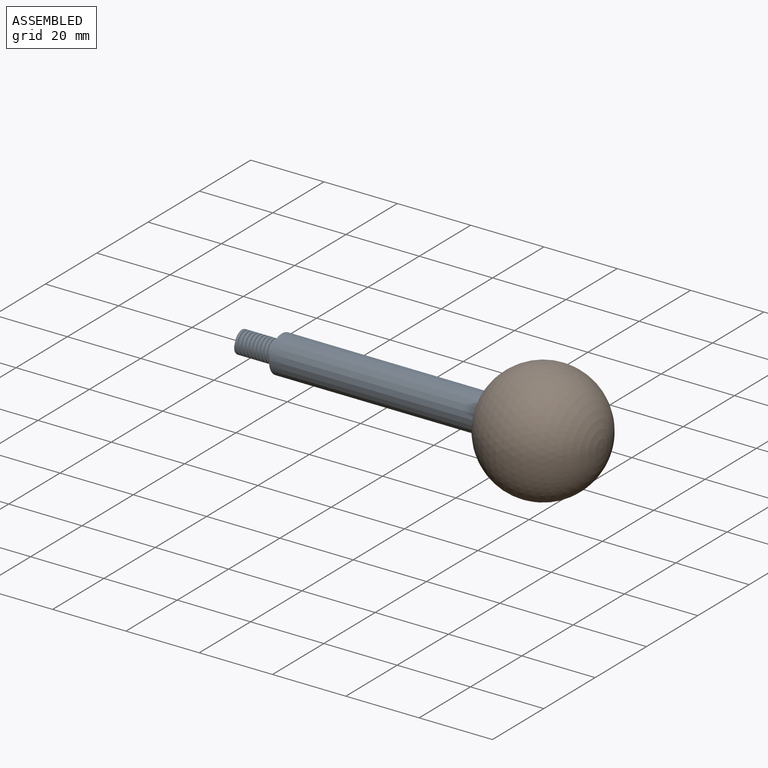
[diagram: assembled view]
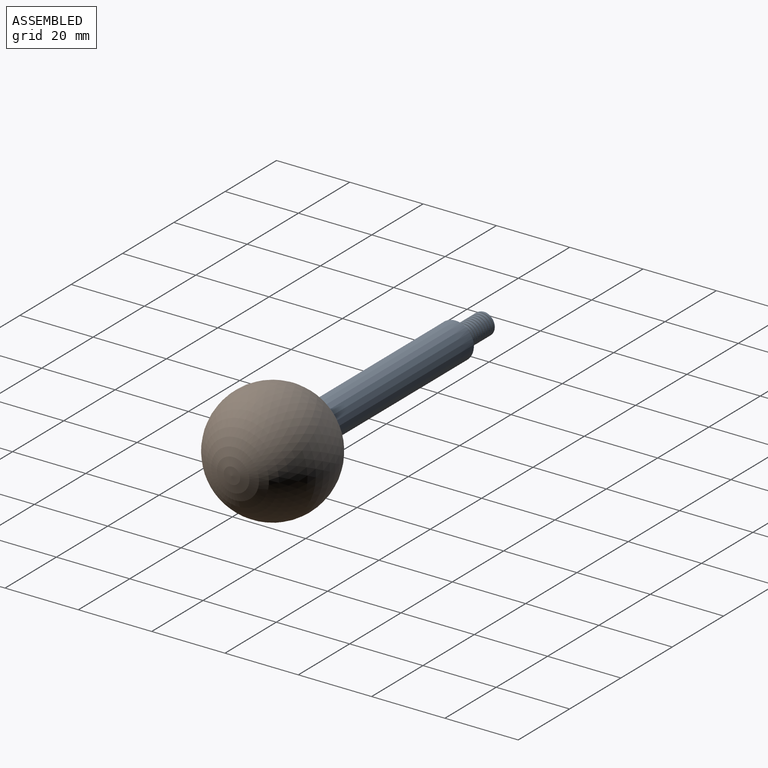
[diagram: assembled view, second angle]
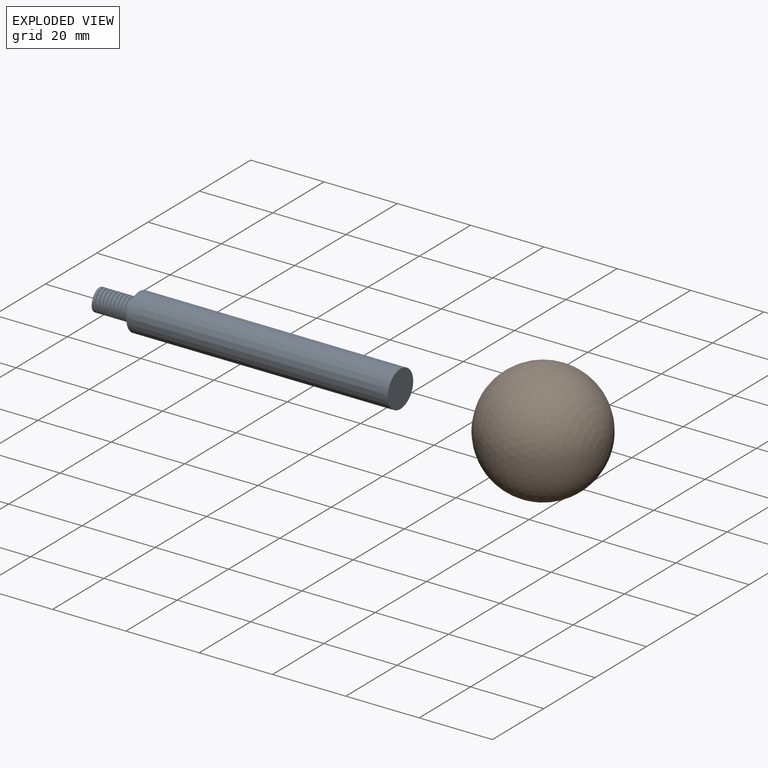
[diagram: exploded view]
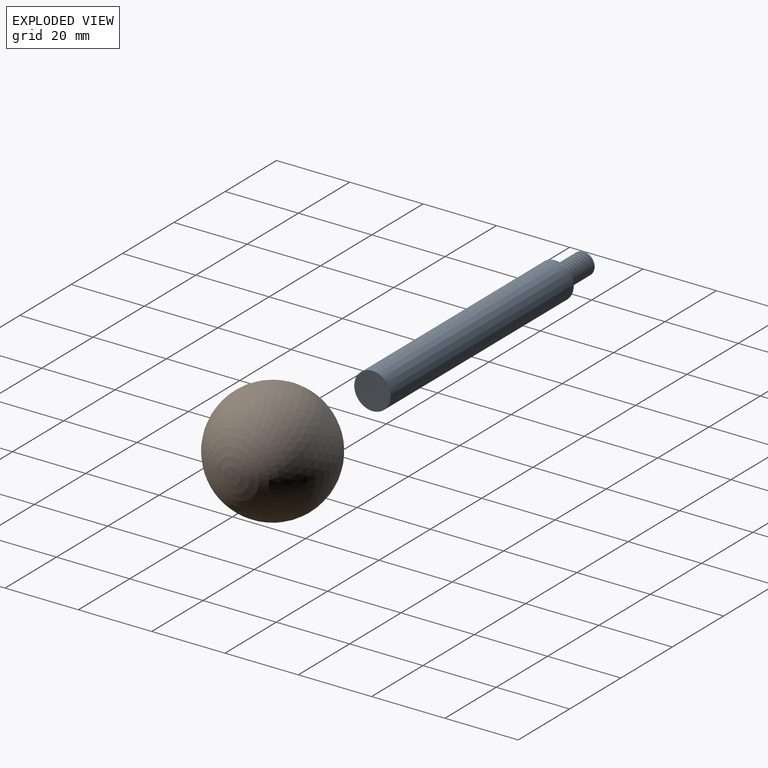
[diagram: exploded view, second angle]
ASSEMBLY  parts=2 mates=2
PART A: 10 faces, bbox 82.5x10x10 mm
  f0: cone r=3mm half-angle=0deg, axis (1,0,0), area 152.3mm2, adj f1,f2,f5,f6,f7,f9
  f1: cone r=0mm half-angle=90deg, axis (-1,0,0), area 27.3mm2, adj f0,f5,f7,f9
  f2: cone r=3mm half-angle=90deg, axis (-1,0,0), area 50.2mm2, adj f0,f4,f6,f7,f8
  f3: cone r=0mm half-angle=90deg, axis (1,0,0), area 77.7mm2, adj f4
  f4: cone r=5mm half-angle=0deg, axis (-1,0,0), area 2233.2mm2, adj f2,f3
  f5: plane 0.05x0.03mm, normal (0,-1,0), area 0mm2, adj f0,f1,f7
  f6: plane 0.41x0.4mm, normal (0,1,0), area 0.1mm2, adj f0,f2,f7,f8,f9
  f7: bspline ~11.29x6.42mm, area 78.3mm2, adj f0,f1,f2,f5,f6,f8,f9
  f8: bspline ~2.17x0.81mm, area 0.1mm2, adj f2,f6,f7
  f9: bspline ~11.02x6.41mm, area 66.2mm2, adj f0,f1,f6,f7
PART B: 4 faces, bbox 29x32x32 mm
  f0: sphere r=16mm, area 2915.4mm2, adj f1
  f1: plane 18.65x18.65mm, normal (-1,0,0), area 194.8mm2, adj f0,f2
  f2: cylinder r=5mm len=13mm, axis (-1,0,0), area 408.4mm2, adj f1,f3
  f3: plane 10x10mm, normal (-1,0,0), area 78.5mm2, adj f2
PLACE A rot(axis=(0,-1,0),0deg) t=(-65.66,69.16,-44.33)mm
PLACE B t=(-88.25,69.16,-41.32)mm
MATE planar B.f2 <-> A.f3  axis (-1,0,0) through (-82.62,69.16,-21.15)mm
MATE cylindrical B.f2 <-> A.f3  axis (-1,0,0) through (-95.62,69.16,-21.15)mm
